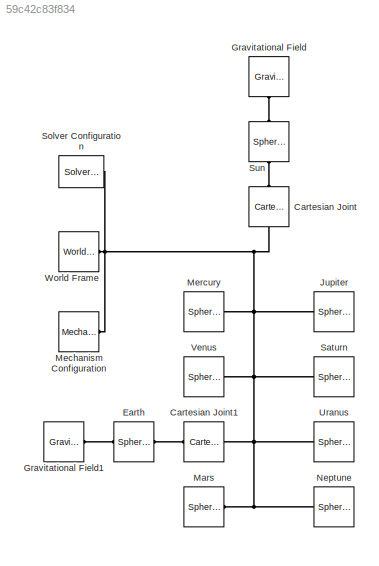
MODEL slx_59c42c83f834
KIND model
CONFIG AbsTol = auto
CONFIG EnableMultiTasking = off
CONFIG FixedStep = auto
CONFIG MaxStep = 24*60*60
CONFIG MinStep = auto
CONFIG RelTol = 1e-3
CONFIG SampleTimeConstraint = Unconstrained
CONFIG Solver = VariableStepAuto
CONFIG SolverName = VariableStepAuto
CONFIG StartTime = 0.0
CONFIG StopTime = 10*365*24*60*60
WORKSPACE source: MATLAB code (in-file)
WORKSPACE SunScaling = 0.5e2  (= 50)
WORKSPACE TerrestialPlanetScaling = 1.2e3  (= 1200)
WORKSPACE GasGiantScaling = 2.5e2  (= 250)
WORKSPACE code: Sun.M = 1.99e30;
WORKSPACE code: Sun.R = 6.96e8*SunScaling;
WORKSPACE code: Sun.RGB = [1 0.5 0];
WORKSPACE code: Sun.Px = 5.5850e+08;
WORKSPACE code: Sun.Py = 5.5850e+08;
WORKSPACE code: Sun.Pz = 5.5850e+08;
WORKSPACE code: Sun.Vx = -1.4663;
WORKSPACE code: Sun.Vy = 11.1238;
WORKSPACE code: Sun.Vz = 4.8370;
WORKSPACE code: Earth.M = 5.97e24;
WORKSPACE code: Earth.R = 6.05e6*TerrestialPlanetScaling;
WORKSPACE code: Earth.RGB = [0.3 0.6 0.8];
WORKSPACE code: Earth.Px = -1.1506e+09;
WORKSPACE code: Earth.Py = -1.3910e+11;
WORKSPACE code: Earth.Pz = -6.0330e+10;
WORKSPACE code: Earth.Vx = 2.9288e+04;
WORKSPACE code: Earth.Vy = -398.5759;
WORKSPACE code: Earth.Vz = -172.5873;
BLOCK [Reference] Cartesian Joint  REF=sm_lib/Joints/Cartesian
Joint
  Ports = [0, 0, 0, 0, 0, 1, 1]
  SourceBlock = sm_lib/Joints/Cartesian\nJoint
  SourceProductBaseCode = MS
  SourceProductName = Simscape Multibody
  SourceType = Cartesian\nJoint
BLOCK [Reference] Cartesian Joint1  REF=sm_lib/Joints/Cartesian
Joint
  Ports = [0, 0, 0, 0, 0, 1, 1]
  SourceBlock = sm_lib/Joints/Cartesian\nJoint
  SourceProductBaseCode = MS
  SourceProductName = Simscape Multibody
  SourceType = Cartesian\nJoint
BLOCK [Reference] Earth  REF=sm_lib/Body Elements/Spherical Solid
  Ports = [0, 0, 0, 0, 0, 1, 1]
  SourceBlock = sm_lib/Body Elements/Spherical Solid
  SourceProductBaseCode = MS
  SourceProductName = Simscape Multibody
  SourceType = Spherical Solid
BLOCK [Reference] Gravitational Field  REF=sm_lib/Forces and
Torques/Gravitational
Field
  Ports = [0, 0, 0, 0, 0, 1]
  SourceBlock = sm_lib/Forces and\nTorques/Gravitational\nField
  SourceProductBaseCode = MS
  SourceProductName = Simscape Multibody
  SourceType = Gravitational\nField
BLOCK [Reference] Gravitational Field1  REF=sm_lib/Forces and
Torques/Gravitational
Field
  Ports = [0, 0, 0, 0, 0, 1]
  SourceBlock = sm_lib/Forces and\nTorques/Gravitational\nField
  SourceProductBaseCode = MS
  SourceProductName = Simscape Multibody
  SourceType = Gravitational\nField
BLOCK [Reference] Jupiter  REF=sm_lib/Body Elements/Spherical Solid
  Commented = on
  Ports = [0, 0, 0, 0, 0, 0, 1]
  SourceBlock = sm_lib/Body Elements/Spherical Solid
  SourceProductBaseCode = MS
  SourceProductName = Simscape Multibody
  SourceType = Spherical Solid
BLOCK [Reference] Mars  REF=sm_lib/Body Elements/Spherical Solid
  Commented = on
  Ports = [0, 0, 0, 0, 0, 0, 1]
  SourceBlock = sm_lib/Body Elements/Spherical Solid
  SourceProductBaseCode = MS
  SourceProductName = Simscape Multibody
  SourceType = Spherical Solid
BLOCK [Reference] Mechanism Configuration  REF=sm_lib/Utilities/Mechanism
Configuration
  Ports = [0, 0, 0, 0, 0, 0, 1]
  SourceBlock = sm_lib/Utilities/Mechanism\nConfiguration
  SourceProductBaseCode = MS
  SourceProductName = Simscape Multibody
  SourceType = Mechanism\nConfiguration
BLOCK [Reference] Mercury  REF=sm_lib/Body Elements/Spherical Solid
  Commented = on
  Ports = [0, 0, 0, 0, 0, 0, 1]
  SourceBlock = sm_lib/Body Elements/Spherical Solid
  SourceProductBaseCode = MS
  SourceProductName = Simscape Multibody
  SourceType = Spherical Solid
BLOCK [Reference] Neptune  REF=sm_lib/Body Elements/Spherical Solid
  Commented = on
  Ports = [0, 0, 0, 0, 0, 0, 1]
  SourceBlock = sm_lib/Body Elements/Spherical Solid
  SourceProductBaseCode = MS
  SourceProductName = Simscape Multibody
  SourceType = Spherical Solid
BLOCK [Reference] Saturn  REF=sm_lib/Body Elements/Spherical Solid
  Commented = on
  Ports = [0, 0, 0, 0, 0, 0, 1]
  SourceBlock = sm_lib/Body Elements/Spherical Solid
  SourceProductBaseCode = MS
  SourceProductName = Simscape Multibody
  SourceType = Spherical Solid
BLOCK [Reference] Solver Configuration  REF=nesl_utility/Solver
Configuration
  Ports = [0, 0, 0, 0, 0, 0, 1]
  SourceBlock = nesl_utility/Solver\nConfiguration
  SourceProductBaseCode = SS
  SourceProductName = Simscape
  SourceType = Solver\nConfiguration
BLOCK [Reference] Sun  REF=sm_lib/Body Elements/Spherical Solid
  Ports = [0, 0, 0, 0, 0, 1, 1]
  SourceBlock = sm_lib/Body Elements/Spherical Solid
  SourceProductBaseCode = MS
  SourceProductName = Simscape Multibody
  SourceType = Spherical Solid
BLOCK [Reference] Uranus  REF=sm_lib/Body Elements/Spherical Solid
  Commented = on
  Ports = [0, 0, 0, 0, 0, 0, 1]
  SourceBlock = sm_lib/Body Elements/Spherical Solid
  SourceProductBaseCode = MS
  SourceProductName = Simscape Multibody
  SourceType = Spherical Solid
BLOCK [Reference] Venus  REF=sm_lib/Body Elements/Spherical Solid
  Commented = on
  Ports = [0, 0, 0, 0, 0, 0, 1]
  SourceBlock = sm_lib/Body Elements/Spherical Solid
  SourceProductBaseCode = MS
  SourceProductName = Simscape Multibody
  SourceType = Spherical Solid
BLOCK [Reference] World Frame  REF=sm_lib/Frames and
Transforms/World Frame
  Ports = [0, 0, 0, 0, 0, 0, 1]
  SourceBlock = sm_lib/Frames and\nTransforms/World Frame
  SourceProductBaseCode = MS
  SourceProductName = Simscape Multibody
  SourceType = World Frame
PNET net1: Cartesian Joint1:LConn1 -- Cartesian Joint:LConn1 -- Jupiter:RConn1 -- Mars:RConn1 -- Mechanism Configuration:RConn1 -- Mercury:RConn1 -- Neptune:RConn1 -- Saturn:RConn1 -- Solver Configuration:RConn1 -- Uranus:RConn1 -- Venus:RConn1 -- World Frame:RConn1
PLINE Cartesian Joint1:RConn1 -- Earth:RConn1
PLINE Cartesian Joint:RConn1 -- Sun:RConn1
PLINE Earth:LConn1 -- Gravitational Field1:LConn1
PLINE Gravitational Field:LConn1 -- Sun:LConn1
note: PNET lines group multi-terminal physical nets as a canonical sorted terminal list (undirected conserving connections); 2-terminal nets keep the pairwise PLINE form
